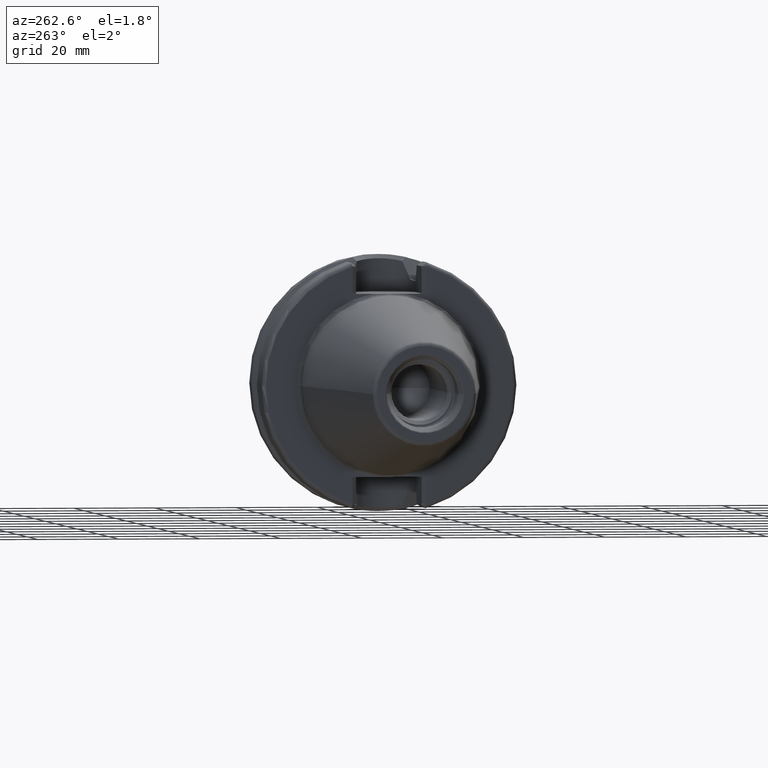
[diagram: clean part render]
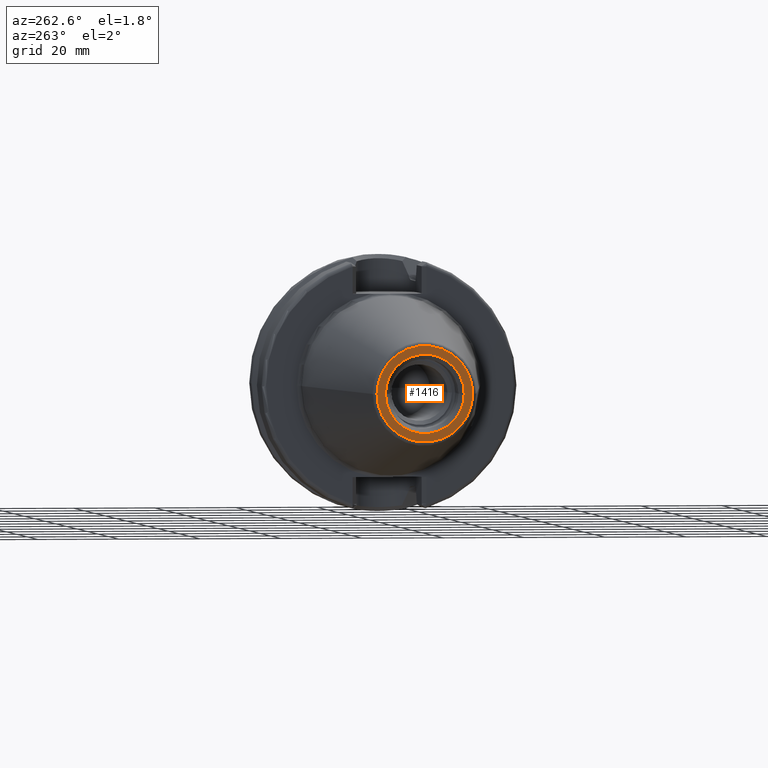
[diagram: same view with one face highlighted and labeled with its STEP entity id]
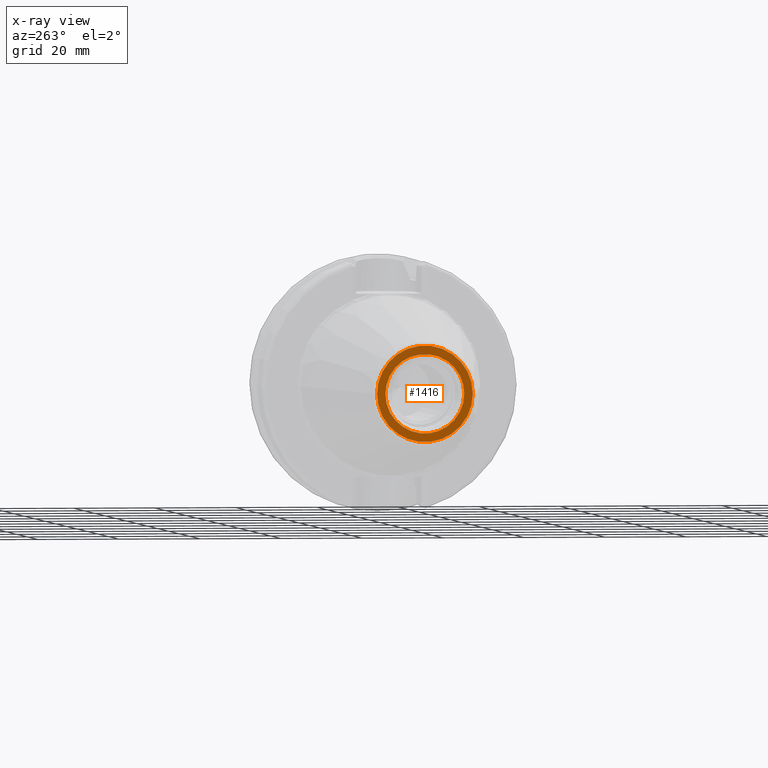
[diagram: x-ray of the same camera — body ghosted, the highlighted face saturated]
A machine part, auxiliary view. The second image highlights one B-rep face of the part: STEP entity #1416.
The next image is the same camera in x-ray: the body ghosted, the highlighted face saturated — about 0% of this face is hidden behind the body in this view.
In plain terms, the highlighted planar face has unit normal (1, 0, 0).
Its self-contained STEP definition (entity closure, byte-faithful):
#2=CARTESIAN_POINT('',(-6.54E1,0.E0,0.E0));
#3=DIRECTION('',(-1.E0,0.E0,0.E0));
#4=DIRECTION('',(0.E0,1.E0,0.E0));
#5=AXIS2_PLACEMENT_3D('',#2,#3,#4);
#7=CARTESIAN_POINT('',(-6.54E1,0.E0,0.E0));
#8=DIRECTION('',(1.E0,0.E0,0.E0));
#9=DIRECTION('',(0.E0,1.E0,0.E0));
#10=AXIS2_PLACEMENT_3D('',#7,#8,#9);
#12=CARTESIAN_POINT('',(-6.54E1,0.E0,0.E0));
#13=DIRECTION('',(1.E0,0.E0,0.E0));
#14=DIRECTION('',(0.E0,1.E0,0.E0));
#15=AXIS2_PLACEMENT_3D('',#12,#13,#14);
#17=CARTESIAN_POINT('',(-6.54E1,0.E0,0.E0));
#18=DIRECTION('',(1.E0,0.E0,0.E0));
#19=DIRECTION('',(0.E0,-1.E0,0.E0));
#20=AXIS2_PLACEMENT_3D('',#17,#18,#19);
#1153=CARTESIAN_POINT('',(-6.54E1,1.182197113897E1,0.E0));
#1155=VERTEX_POINT('',#1153);
#1157=CARTESIAN_POINT('',(-6.54E1,-1.182197113897E1,0.E0));
#1159=VERTEX_POINT('',#1157);
#1282=CARTESIAN_POINT('',(-6.54E1,9.730940107676E0,0.E0));
#1283=CARTESIAN_POINT('',(-6.54E1,-9.730940107676E0,0.E0));
#1284=VERTEX_POINT('',#1282);
#1285=VERTEX_POINT('',#1283);
#1399=CARTESIAN_POINT('',(-6.54E1,0.E0,0.E0));
#1400=DIRECTION('',(1.E0,0.E0,0.E0));
#1401=DIRECTION('',(0.E0,-1.E0,0.E0));
#1402=AXIS2_PLACEMENT_3D('',#1399,#1400,#1401);
#1403=PLANE('',#1402);
#1405=ORIENTED_EDGE('',*,*,#1404,.F.);
#1407=ORIENTED_EDGE('',*,*,#1406,.T.);
#1408=EDGE_LOOP('',(#1405,#1407));
#1409=FACE_OUTER_BOUND('',#1408,.F.);
#1411=ORIENTED_EDGE('',*,*,#1410,.F.);
#1413=ORIENTED_EDGE('',*,*,#1412,.F.);
#1414=EDGE_LOOP('',(#1411,#1413));
#1415=FACE_BOUND('',#1414,.F.);
#1416=ADVANCED_FACE('',(#1409,#1415),#1403,.F.);
#6=CIRCLE('',#5,1.182197113897E1);
#11=CIRCLE('',#10,1.182197113897E1);
#16=CIRCLE('',#15,9.730940107676E0);
#21=CIRCLE('',#20,9.730940107676E0);
#1404=EDGE_CURVE('',#1155,#1159,#6,.T.);
#1406=EDGE_CURVE('',#1155,#1159,#11,.T.);
#1410=EDGE_CURVE('',#1284,#1285,#16,.T.);
#1412=EDGE_CURVE('',#1285,#1284,#21,.T.);